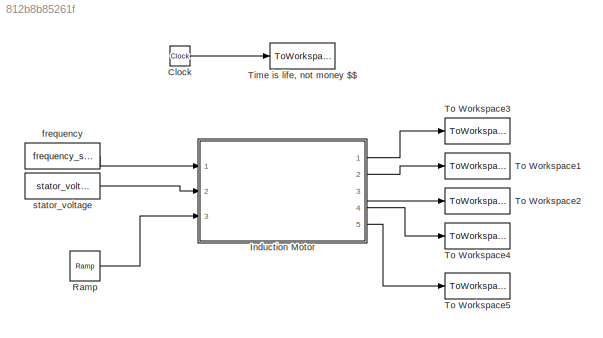
MODEL slx_812b8b85261f
KIND model
CONFIG AbsTol = auto
CONFIG EnableMultiTasking = off
CONFIG FixedStep = auto
CONFIG MaxStep = auto
CONFIG MinStep = auto
CONFIG RelTol = 1e-3
CONFIG SampleTimeConstraint = Unconstrained
CONFIG Solver = VariableStepAuto
CONFIG SolverName = VariableStepAuto
CONFIG StartTime = 0.0
CONFIG StopTime = 10.0
BLOCK [Clock] Clock
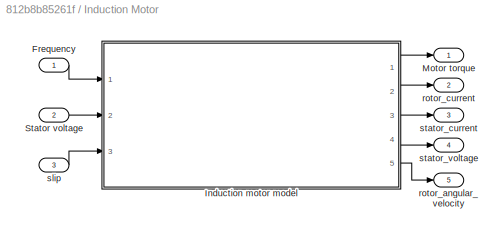
BLOCK [SubSystem] Induction Motor
  Ports = [3, 5]
  RequestExecContextInheritance = off
BLOCK [Inport] Induction Motor/Frequency 
  IconDisplay = Port number
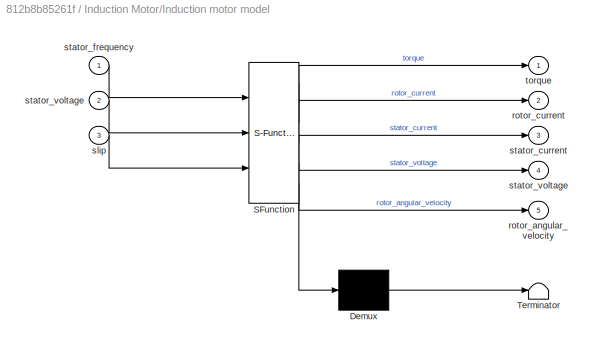
BLOCK [SubSystem] Induction Motor/Induction motor model 
  ErrorFcn = Stateflow.Translate.translate
  PermitHierarchicalResolution = ExplicitOnly
  Ports = [3, 5]
  RequestExecContextInheritance = off
  SFBlockType = MATLAB Function
  TreatAsAtomicUnit = on
BLOCK [Demux] Induction Motor/Induction motor model / Demux 
  Outputs = 1
  Ports = [1, 1]
BLOCK [S-Function] Induction Motor/Induction motor model / SFunction 
  EnableBusSupport = on
  FunctionName = sf_sfun
  PortCounts = [3 6]
  Ports = [3, 6]
  SFcnIsStateOwnerBlock = off
  SFunctionDeploymentMode = off
  Tag = Stateflow S-Function 2
BLOCK [Terminator] Induction Motor/Induction motor model / Terminator 
BLOCK [Outport] Induction Motor/Induction motor model /rotor_angular_velocity
  IconDisplay = Port number
  Port = 5
BLOCK [Outport] Induction Motor/Induction motor model /rotor_current
  IconDisplay = Port number
  Port = 2
BLOCK [Inport] Induction Motor/Induction motor model /slip
  IconDisplay = Port number
  Port = 3
BLOCK [Outport] Induction Motor/Induction motor model /stator_current
  IconDisplay = Port number
  Port = 3
BLOCK [Inport] Induction Motor/Induction motor model /stator_frequency
  IconDisplay = Port number
BLOCK [Outport] Induction Motor/Induction motor model /stator_voltage
  IconDisplay = Port number
  Port = 4
BLOCK [Inport] Induction Motor/Induction motor model /stator_voltage 
  IconDisplay = Port number
  Port = 2
BLOCK [Outport] Induction Motor/Induction motor model /torque
  IconDisplay = Port number
BLOCK [Outport] Induction Motor/Motor torque
  IconDisplay = Port number
BLOCK [Inport] Induction Motor/Stator voltage 
  IconDisplay = Port number
  Port = 2
BLOCK [Outport] Induction Motor/rotor_angular_velocity
  IconDisplay = Port number
  Port = 5
BLOCK [Outport] Induction Motor/rotor_current
  IconDisplay = Port number
  Port = 2
BLOCK [Inport] Induction Motor/slip 
  IconDisplay = Port number
  Port = 3
BLOCK [Outport] Induction Motor/stator_current
  IconDisplay = Port number
  Port = 3
BLOCK [Outport] Induction Motor/stator_voltage
  IconDisplay = Port number
  Port = 4
BLOCK [Reference] Ramp  REF=simulink/Sources/Ramp
  Ports = [0, 1]
  SourceBlock = simulink/Sources/Ramp
  SourceProductBaseCode = SL
  SourceProductName = Simulink
  SourceType = Ramp
BLOCK [ToWorkspace] Time is life, not money $$
  FixptAsFi = on
  MaxDataPoints = inf
  Ports = [1]
  SampleTime = -1
  VariableName = time
BLOCK [ToWorkspace] To Workspace1
  FixptAsFi = on
  MaxDataPoints = inf
  Ports = [1]
  SampleTime = -1
  VariableName = rotor_current
BLOCK [ToWorkspace] To Workspace2
  FixptAsFi = on
  MaxDataPoints = inf
  Ports = [1]
  SampleTime = -1
  VariableName = stator_current
BLOCK [ToWorkspace] To Workspace3
  FixptAsFi = on
  MaxDataPoints = inf
  Ports = [1]
  SampleTime = -1
  VariableName = torque
BLOCK [ToWorkspace] To Workspace4
  FixptAsFi = on
  MaxDataPoints = inf
  Ports = [1]
  SampleTime = -1
  VariableName = stator_voltage
BLOCK [ToWorkspace] To Workspace5
  FixptAsFi = on
  MaxDataPoints = inf
  Ports = [1]
  SampleTime = -1
  VariableName = rotor_angular_velocity
BLOCK [Constant] frequency
  Value = frequency_stator
BLOCK [Constant] stator_voltage 
  Value = stator_voltage
LINE Clock:1 -> Time is life, not money $$:1
LINE Induction Motor/Frequency :1 -> Induction Motor/Induction motor model :1
LINE Induction Motor/Induction motor model :1 -> Induction Motor/Motor torque:1
LINE Induction Motor/Induction motor model :2 -> Induction Motor/rotor_current:1
LINE Induction Motor/Induction motor model :3 -> Induction Motor/stator_current:1
LINE Induction Motor/Induction motor model :4 -> Induction Motor/stator_voltage:1
LINE Induction Motor/Induction motor model :5 -> Induction Motor/rotor_angular_velocity:1
LINE Induction Motor/Stator voltage :1 -> Induction Motor/Induction motor model :2
LINE Induction Motor/slip :1 -> Induction Motor/Induction motor model :3
LINE Induction Motor:1 -> To Workspace3:1
LINE Induction Motor:2 -> To Workspace1:1
LINE Induction Motor:3 -> To Workspace2:1
LINE Induction Motor:4 -> To Workspace4:1
LINE Induction Motor:5 -> To Workspace5:1
LINE Ramp:1 -> Induction Motor:3
LINE frequency:1 -> Induction Motor:1
LINE stator_voltage :1 -> Induction Motor:2
CHART Induction Motor/Induction motor model
 states=1 transitions=1
  STATE_LABEL 'eML_blk_kernel()'
  STATE_LABEL 'SCRIPT:\nfunction [torque, rotor_current, stator_current, stator_voltage, rotor_angular_velocity] = fcn(stator_frequency, stator_voltage, slip)\n    % Constant specs\n    stator_resistance = 8.56*1e-3;\n    stator_leakage_inductance = 0.06292 * 1e-3;\n    mutual_inductance = 1.0122 * 1e-3;\n    rotor_resistance = 10.20 *1e-3;\n    rotor_leakage_inductance = 0.06709 * 1e-3;\n    % Variable specs\n    stator...<+1083ch>'
